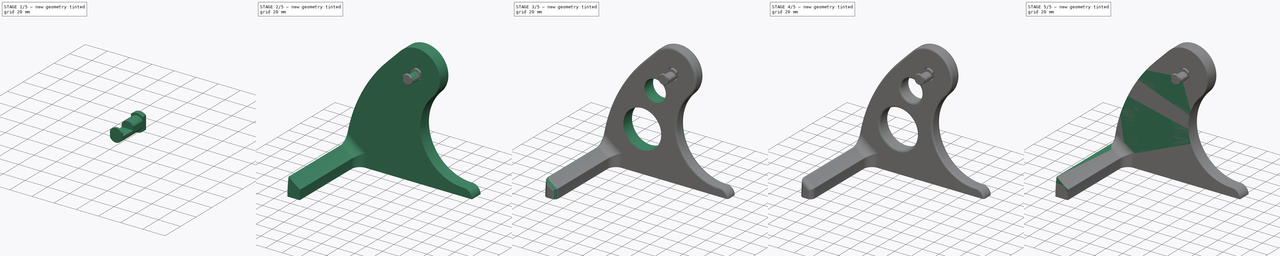
[diagram: build sequence overview — one tinted view per stage of 5, left to right]
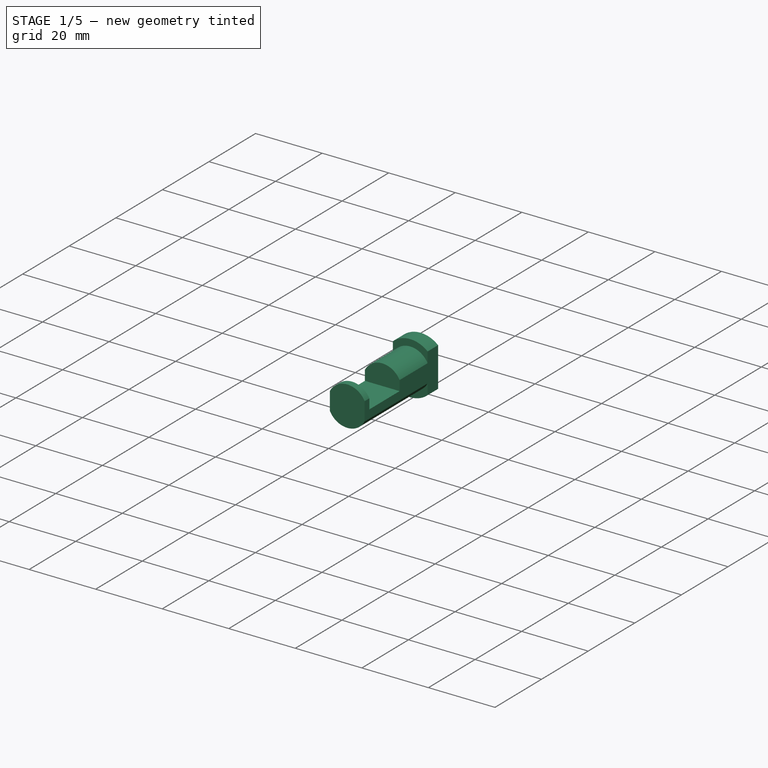
[diagram: stage 1 of 5 — iso view after this stage's code; geometry added in this stage tinted green]
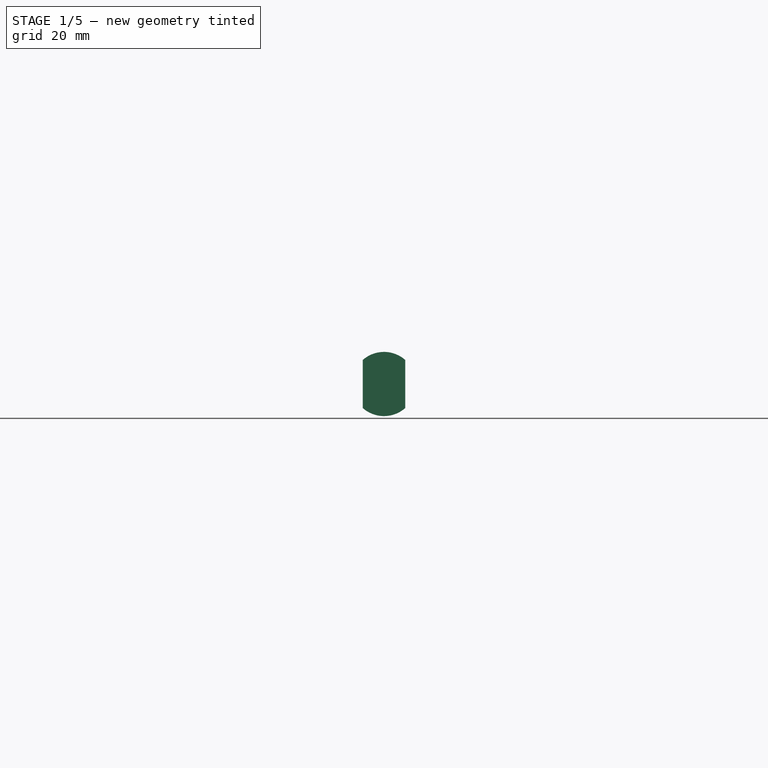
[diagram: stage 1 of 5 — front view after this stage's code; geometry added in this stage tinted green]
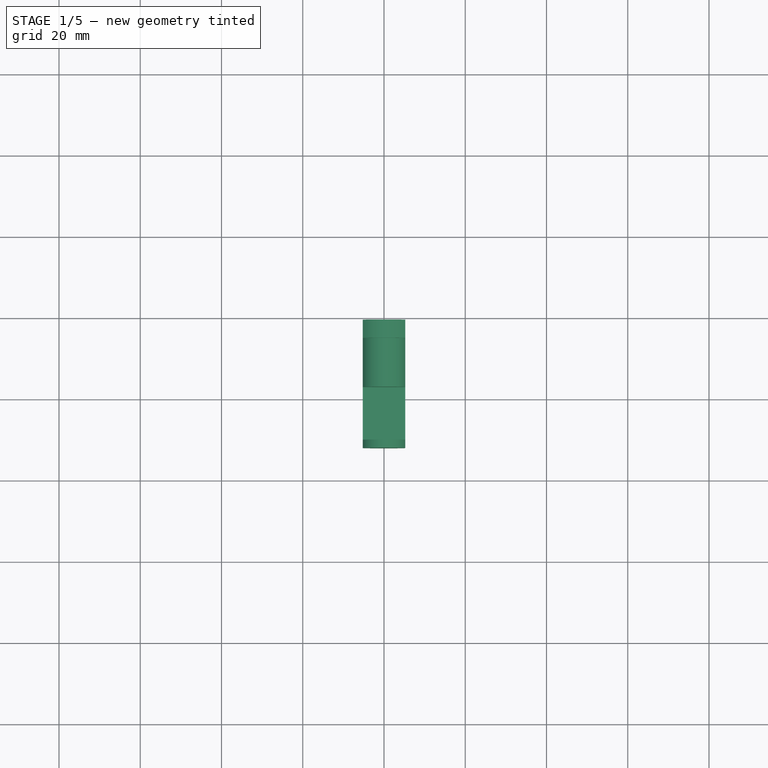
[diagram: stage 1 of 5 — top view after this stage's code; geometry added in this stage tinted green]
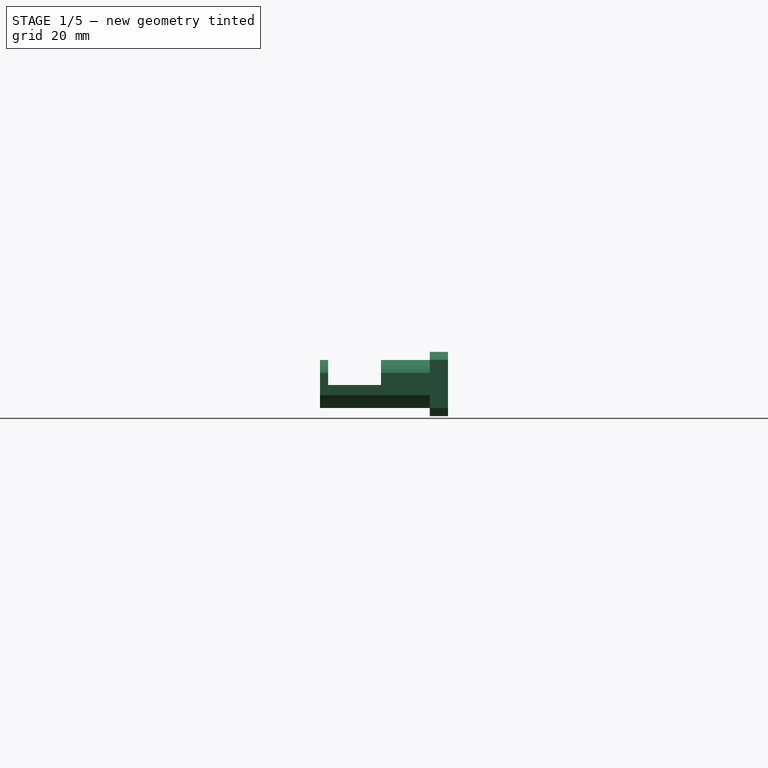
[diagram: stage 1 of 5 — right view after this stage's code; geometry added in this stage tinted green]
FCSTD DOCUMENT  (FreeCAD 0.16R6707 (Git))
Label: spool stand
License: All rights reserved
LicenseURL: http://en.wikipedia.org/wiki/All_rights_reserved
objects: Sketcher::SketchObject×8, PartDesign::Fillet×7, PartDesign::Pad×5, App::DocumentObjectGroup×3, PartDesign::Pocket×3, Part::Feature×1, PartDesign::Chamfer×1
note: 33 computed .brp shape members not serialized (recipe doc carries the construction recipe); baked Part::Feature solids carry a one-line shape summary decoded from their .brp

FEATURE [App::DocumentObjectGroup] Group001  label="stand"
  Group = -> [Group,Pad001001,Fillet,Fillet001,Fillet002,Fillet003,Pocket,Fillet004,Pocket001,Fillet005,Fillet006]
FEATURE [Sketcher::SketchObject] Sketch004
  Placement = pos=(0,-15,0) rot=(1,0,0;1.5708rad)
  sketch-geometry (4):
    g0: ArcOfCircle CenterX=0 CenterY=120 CenterZ=0 NormalX=0 NormalY=0 NormalZ=1 Radius=5.9 StartAngle=3.62647 EndAngle=5.79831
    g1: LineSegment StartX=-5.21991 StartY=122.75 StartZ=0 EndX=-5.21991 EndY=117.25 EndZ=0
    g2: LineSegment StartX=5.21991 StartY=117.25 StartZ=0 EndX=5.21991 EndY=122.75 EndZ=0
    g3: ArcOfCircle CenterX=0 CenterY=120 CenterZ=0 NormalX=0 NormalY=0 NormalZ=1 Radius=5.9 StartAngle=0.484879 EndAngle=2.65671
  constraints (14):
    c: Radius(g0) = 5.9
    c: Vertical(g1)
    c: Vertical(g2)
    c: Equal(g1,g2)
    c: Coincident(g3,g1)
    c: PointOnObject(g0,g1)
    c: Equal(g0,g3)
    c: Coincident(g0,g2)
    c: Coincident(g3,g2)
    c: Coincident(g0,g3)
    c: DistanceY(g2,g2) = 5.5
    c: Coincident(g1,g3)
    c: Coincident(g0,g1)
    c: PointOnObject(g0,g-2)
FEATURE [PartDesign::Pad] Pad001002
  Length = 17
  Length2 = 10
  Placement = pos=(0,-15,0) rot=(1,0,0;1.5708rad)
  Reversed = true
  Sketch = -> Sketch004
  Type = 4
FEATURE [Sketcher::SketchObject] Sketch005
  ExternalGeometry = -> [Pad001002]
  Placement = pos=(0,-5,0) rot=(-1,0,0;1.5708rad)
  Support = -> Pad001002 [Face5]
  sketch-geometry (4):
    g0: ArcOfCircle CenterX=0 CenterY=-120 CenterZ=0 NormalX=0 NormalY=0 NormalZ=1 Radius=7.9 StartAngle=0.848981 EndAngle=2.29261
    g1: ArcOfCircle CenterX=0 CenterY=-120 CenterZ=0 NormalX=0 NormalY=0 NormalZ=1 Radius=7.9 StartAngle=3.99057 EndAngle=5.4342
    g2: LineSegment StartX=5.21991 StartY=-114.07 StartZ=0 EndX=5.21991 EndY=-125.93 EndZ=0
    g3: LineSegment StartX=-5.21991 StartY=-125.93 StartZ=0 EndX=-5.21991 EndY=-114.07 EndZ=0
  constraints (12):
    c: Coincident(g0,g-3)
    c: Radius(g0) = 7.9
    c: Coincident(g1,g0)
    c: Equal(g1,g0)
    c: Coincident(g2,g0)
    c: Coincident(g2,g1)
    c: Vertical(g2)
    c: Coincident(g3,g0)
    c: Vertical(g3)
    c: PointOnObject(g-3,g3)
    c: Coincident(g1,g3)
    c: Equal(g2,g3)
FEATURE [PartDesign::Pad] Pad001003
  Length = 4.5
  Length2 = 100
  Placement = pos=(0,-15,0) rot=(1,0,0;1.5708rad)
  Sketch = -> Sketch005
  Type = 0
FEATURE [Sketcher::SketchObject] Sketch006
  ExternalGeometry = -> [Pad001003]
  Placement = pos=(5.21991,-15,0) rot=(0.707107,0,0.707107;3.14159rad)
  Support = -> Pad001003 [Face3]
  sketch-geometry (4):
    g0: LineSegment StartX=129.75 StartY=15 StartZ=0 EndX=119.75 EndY=15 EndZ=0
    g1: LineSegment StartX=119.75 StartY=15 StartZ=0 EndX=119.75 EndY=2 EndZ=0
    g2: LineSegment StartX=119.75 StartY=2 StartZ=0 EndX=129.75 EndY=2 EndZ=0
    g3: LineSegment StartX=129.75 StartY=2 StartZ=0 EndX=129.75 EndY=15 EndZ=0
  constraints (12):
    c: Coincident(g0,g1)
    c: Coincident(g1,g2)
    c: Coincident(g2,g3)
    c: Coincident(g3,g0)
    c: Horizontal(g0)
    c: Horizontal(g2)
    c: Vertical(g1)
    c: Vertical(g3)
    c: DistanceY(g3,g3) = 13
    c: DistanceX(g0,g0) = 10
    c: DistanceY(g0,g-3) = 2
    c: DistanceX(g0,g-3) = 3
FEATURE [PartDesign::Pocket] Pocket002
  Length = 5
  Placement = pos=(0,-15,0) rot=(1,0,0;1.5708rad)
  Sketch = -> Sketch006
  Type = 1
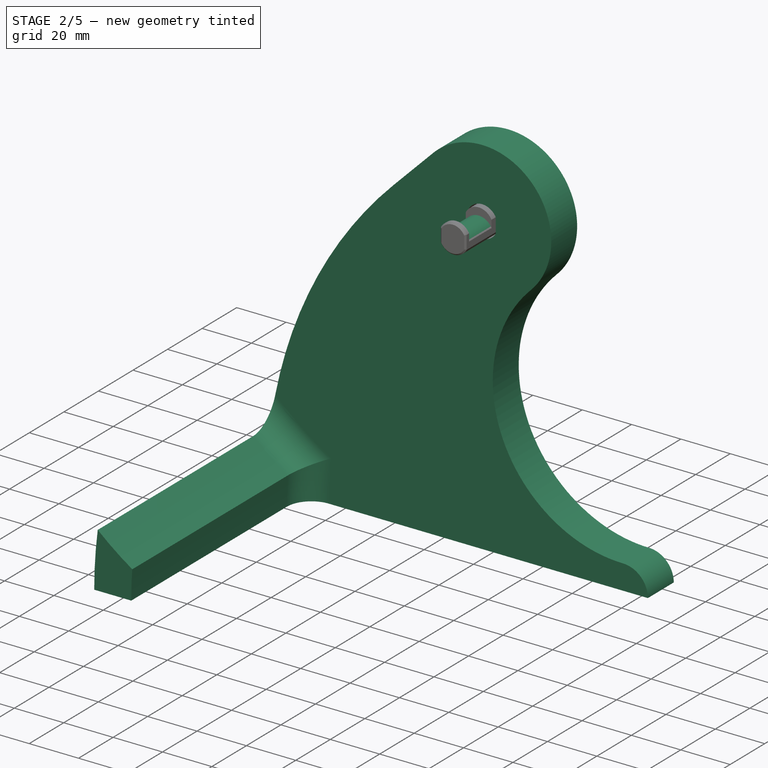
[diagram: stage 2 of 5 — iso view after this stage's code; geometry added in this stage tinted green]
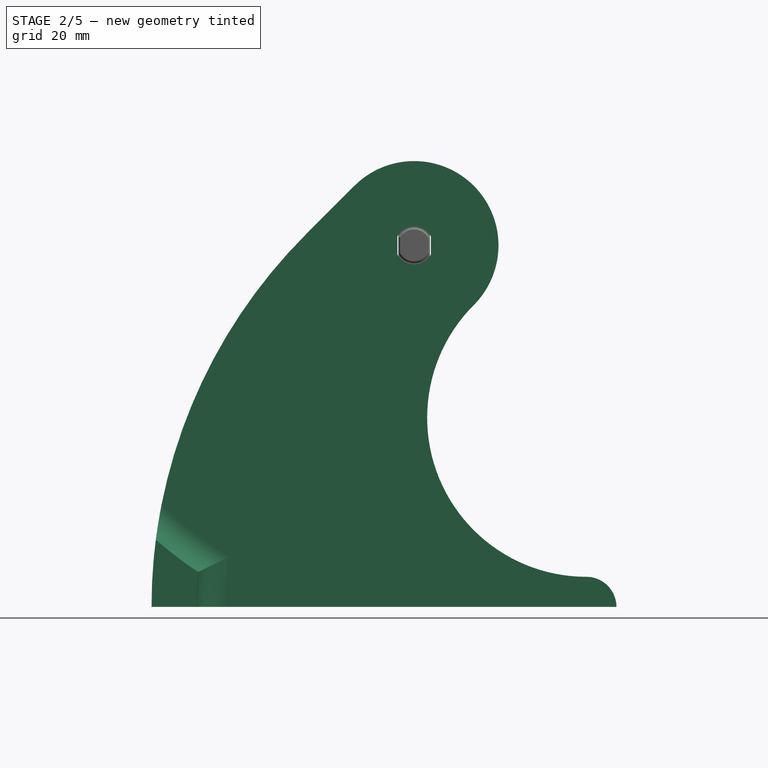
[diagram: stage 2 of 5 — front view after this stage's code; geometry added in this stage tinted green]
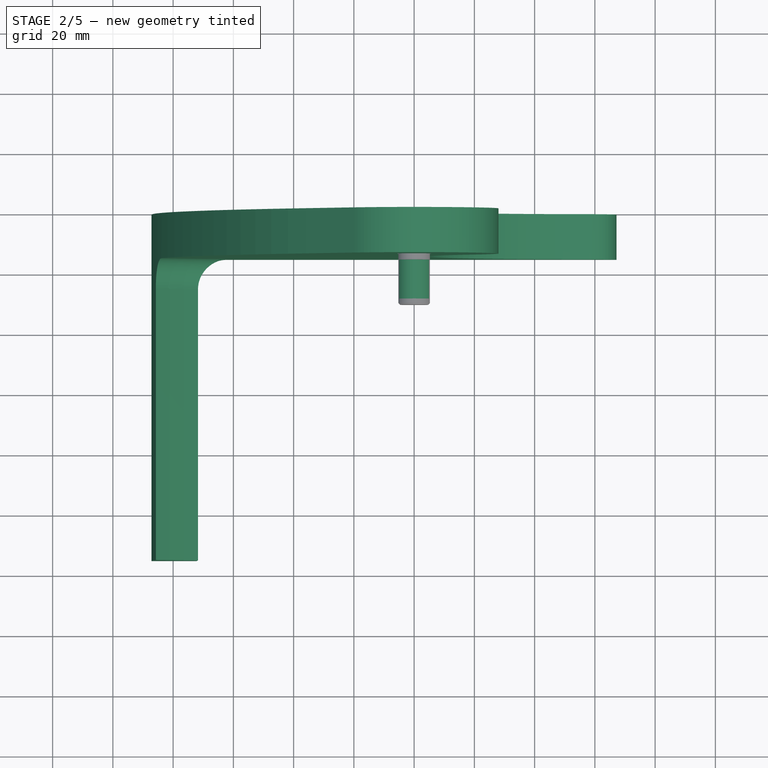
[diagram: stage 2 of 5 — top view after this stage's code; geometry added in this stage tinted green]
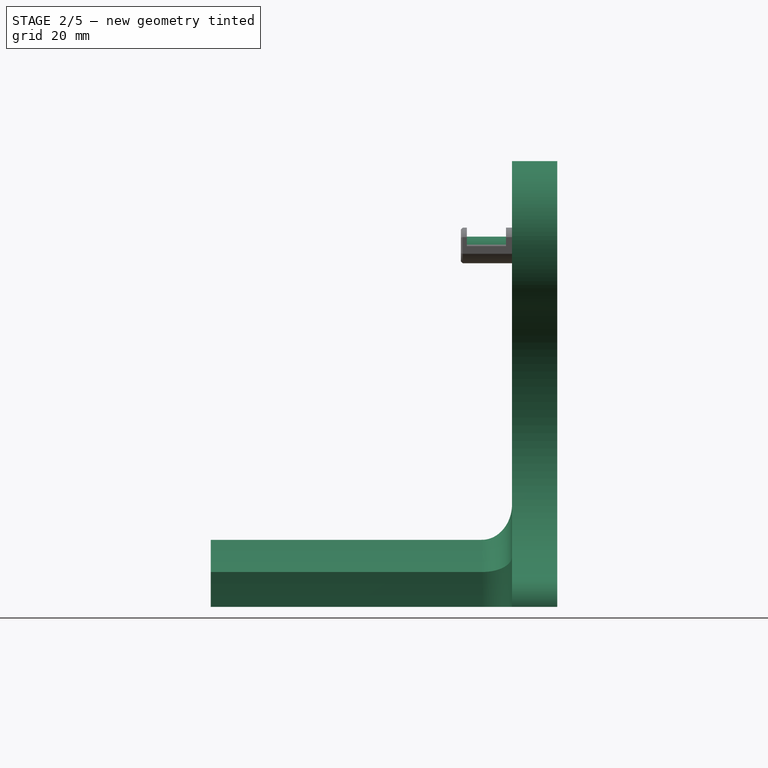
[diagram: stage 2 of 5 — right view after this stage's code; geometry added in this stage tinted green]
FEATURE [App::DocumentObjectGroup] Group  label="src"
  Group = -> [Pad,Pad001]
FEATURE [Part::Feature] Pad001001  label="Pad001"
  shape: bbox 154.3 x 115 x 148 mm, 15 faces (baked)
FEATURE [PartDesign::Fillet] Fillet
  Base = -> Pad001001 [Edge18,Edge19]
  Radius = 10
FEATURE [PartDesign::Chamfer] Chamfer
  Base = -> Pocket002 [Edge1,Edge2,Edge3,Edge4]
  Placement = pos=(0,-15,0) rot=(1,0,0;1.5708rad)
  Size = 0.6
FEATURE [Sketcher::SketchObject] Sketch007
  ExternalGeometry = -> [Chamfer]
  Placement = pos=(0,-17,0) rot=(1,0,0;1.5708rad)
  Support = -> Chamfer [Face14]
  sketch-geometry (2):
    g0: ArcOfCircle CenterX=0 CenterY=117 CenterZ=0 NormalX=0 NormalY=0 NormalZ=1 Radius=5.9 StartAngle=0.484879 EndAngle=2.65671
    g1: LineSegment StartX=-5.21991 StartY=119.75 StartZ=0 EndX=5.21991 EndY=119.75 EndZ=0
  constraints (7):
    c: PointOnObject(g0,g-2)
    c: Equal(g0,g-3)
    c: Coincident(g1,g0)
    c: Coincident(g0,g1)
    c: Coincident(g0,g-4)
    c: Horizontal(g1)
    c: Coincident(g0,g-5)
FEATURE [PartDesign::Pad] Pad001004
  Length = 10
  Length2 = 100
  Placement = pos=(0,-15,0) rot=(1,0,0;1.5708rad)
  Sketch = -> Sketch007
  Type = 3
  UpToFace = -> Chamfer [Face13]
FEATURE [App::DocumentObjectGroup] Group002  label="rod"
  Group = -> [Pad001002,Pad001003,Pocket002,Chamfer,Pad001004]
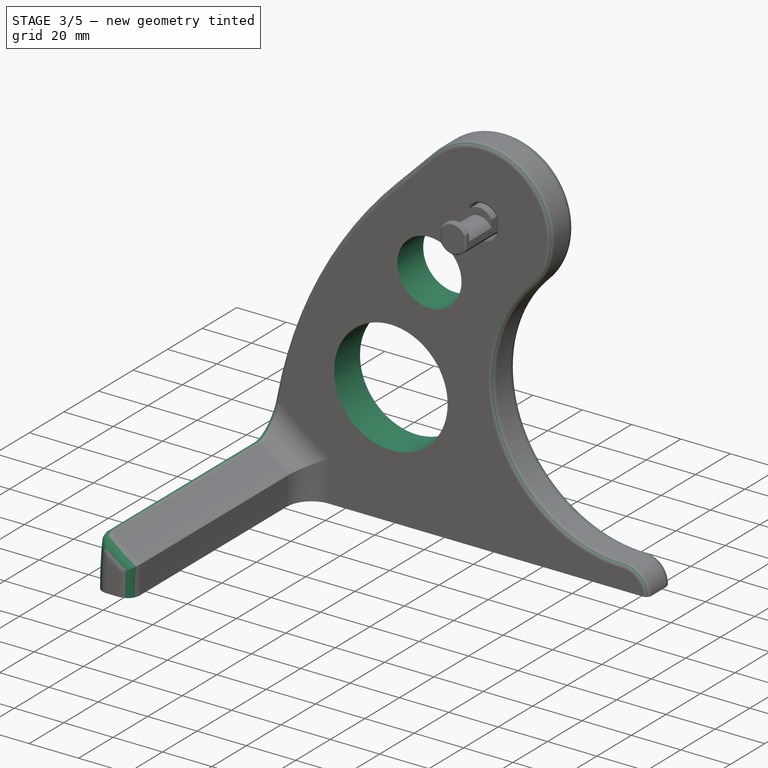
[diagram: stage 3 of 5 — iso view after this stage's code; geometry added in this stage tinted green]
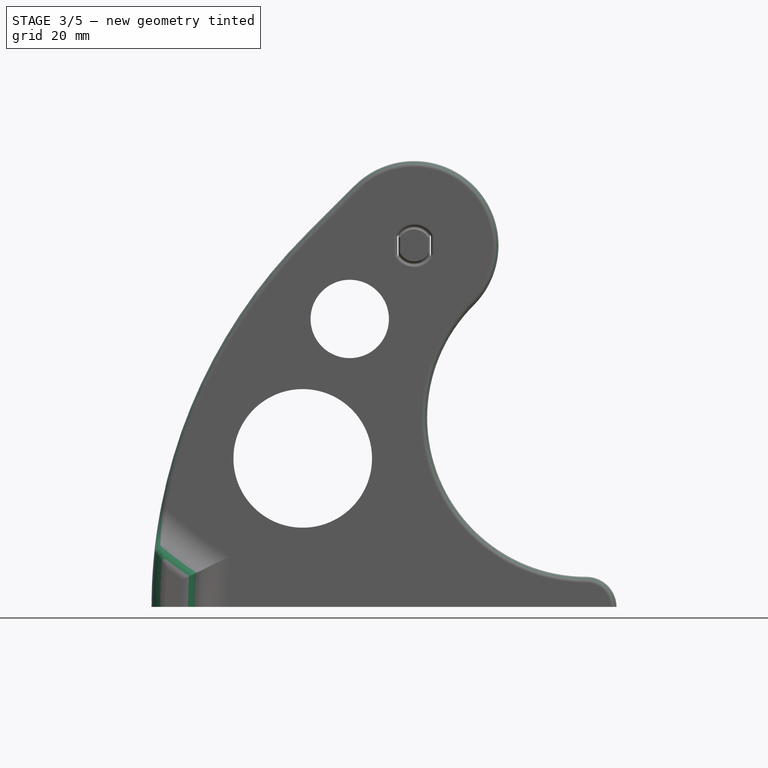
[diagram: stage 3 of 5 — front view after this stage's code; geometry added in this stage tinted green]
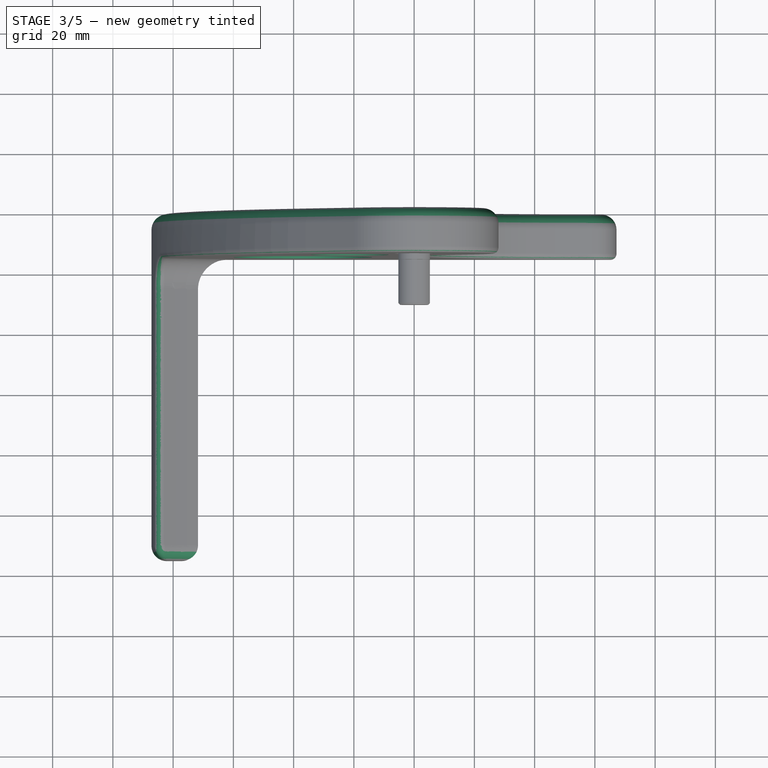
[diagram: stage 3 of 5 — top view after this stage's code; geometry added in this stage tinted green]
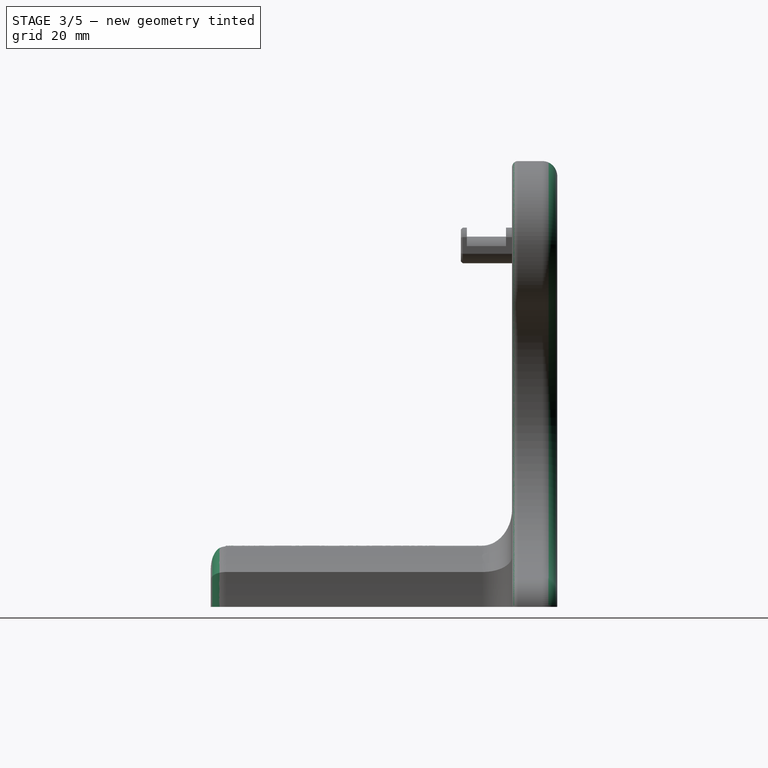
[diagram: stage 3 of 5 — right view after this stage's code; geometry added in this stage tinted green]
FEATURE [PartDesign::Fillet] Fillet001
  Base = -> Fillet [Edge17,Edge42,Edge44,Edge32,Edge33,Edge26,Edge22,Edge16]
  Radius = 5
FEATURE [PartDesign::Fillet] Fillet002
  Base = -> Fillet001 [Edge7]
  Radius = 2
FEATURE [PartDesign::Fillet] Fillet003
  Base = -> Fillet002 [Edge48,Edge49,Edge51,Edge50,Edge56,Edge57,Edge58,Edge55]
  Radius = 1
FEATURE [Sketcher::SketchObject] Sketch002
  ExternalGeometry = -> [Fillet003]
  Placement = pos=(0,-15,0) rot=(1,0,0;1.5708rad)
  Support = -> Fillet003 [Face1]
  sketch-geometry (8):
    g0: Circle CenterX=-21.3704 CenterY=95.5896 CenterZ=0 NormalX=0 NormalY=0 NormalZ=1 Radius=13
    g1: Circle CenterX=-36.9811 CenterY=49.306 CenterZ=0 NormalX=0 NormalY=0 NormalZ=1 Radius=23
    g2: LineSegment [constr] StartX=-51.6315 StartY=102.318 StartZ=0 EndX=-21.3704 EndY=95.5896 EndZ=0
    g3: LineSegment [constr] StartX=-21.3704 StartY=95.5896 StartZ=0 EndX=8.89074 EndY=88.8616 EndZ=0
    g4: LineSegment [constr] StartX=-77.9811 StartY=49.306 StartZ=0 EndX=-36.9811 EndY=49.306 EndZ=0
    g5: LineSegment [constr] StartX=-36.9811 StartY=49.306 StartZ=0 EndX=4.01888 EndY=49.306 EndZ=0
    g6: LineSegment [constr] StartX=-6.53986 StartY=116.757 StartZ=0 EndX=-13.9107 EndY=106.236 EndZ=0
    g7: LineSegment [constr] StartX=-29.6304 StartY=71.0997 StartZ=0 EndX=-25.5251 EndY=83.2714 EndZ=0
  constraints (25):
    c: PointOnObject(g2,g-3)
    c: Coincident(g2,g0)
    c: Coincident(g2,g3)
    c: PointOnObject(g3,g-4)
    c: PointOnObject(g4,g-3)
    c: Coincident(g4,g1)
    c: Coincident(g4,g5)
    c: PointOnObject(g5,g-4)
    c: Parallel(g2,g3)
    c: Parallel(g4,g5)
    c: Equal(g4,g5)
    c: Equal(g2,g3)
    c: Radius(g1) = 23
    c: Radius(g0) = 13
    c: Horizontal(g5)
    c: Distance(g2) = 31
    c: DistanceX(g4,g4) = 41
    c: Coincident(g-5,g6)
    c: PointOnObject(g7,g1)
    c: PointOnObject(g7,g0)
    c: Perpendicular(g0,g6)
    c: Perpendicular(g0,g7)
    c: Perpendicular(g1,g7)
    c: Equal(g7,g6)
    c: PointOnObject(g6,g0)
FEATURE [PartDesign::Pocket] Pocket
  Length = 5
  Sketch = -> Sketch002
  Type = 1
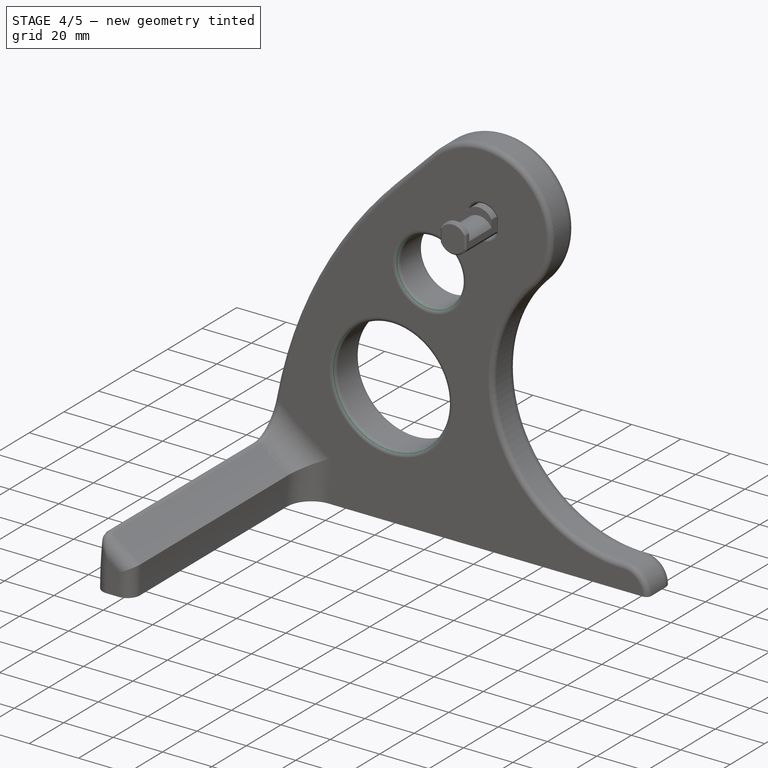
[diagram: stage 4 of 5 — iso view after this stage's code; geometry added in this stage tinted green]
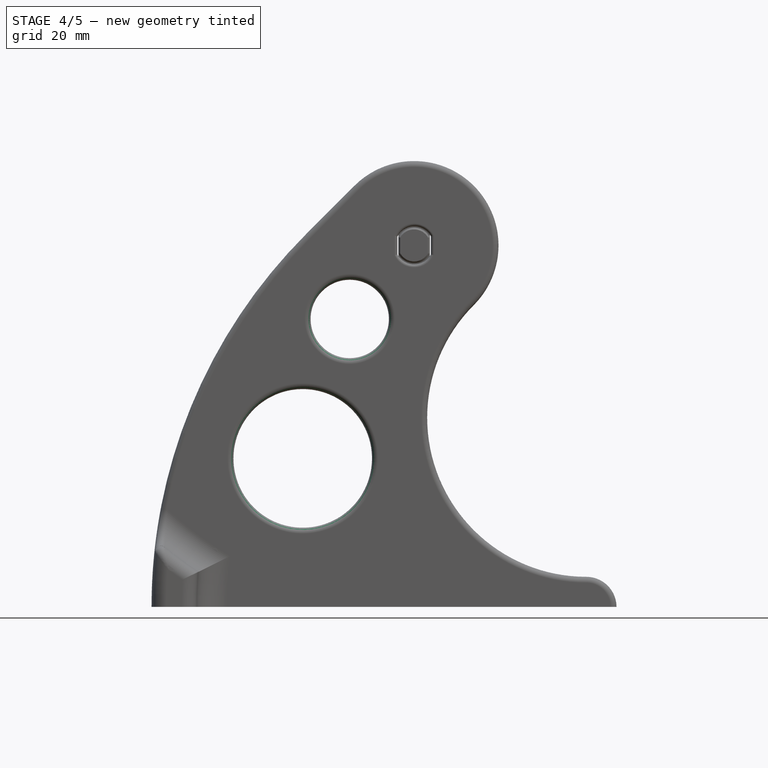
[diagram: stage 4 of 5 — front view after this stage's code; geometry added in this stage tinted green]
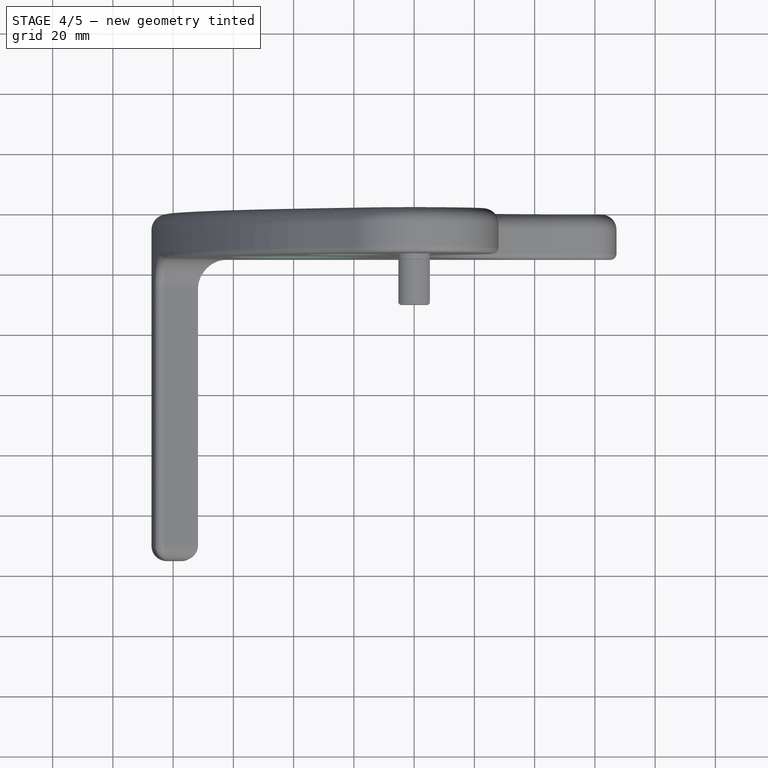
[diagram: stage 4 of 5 — top view after this stage's code; geometry added in this stage tinted green]
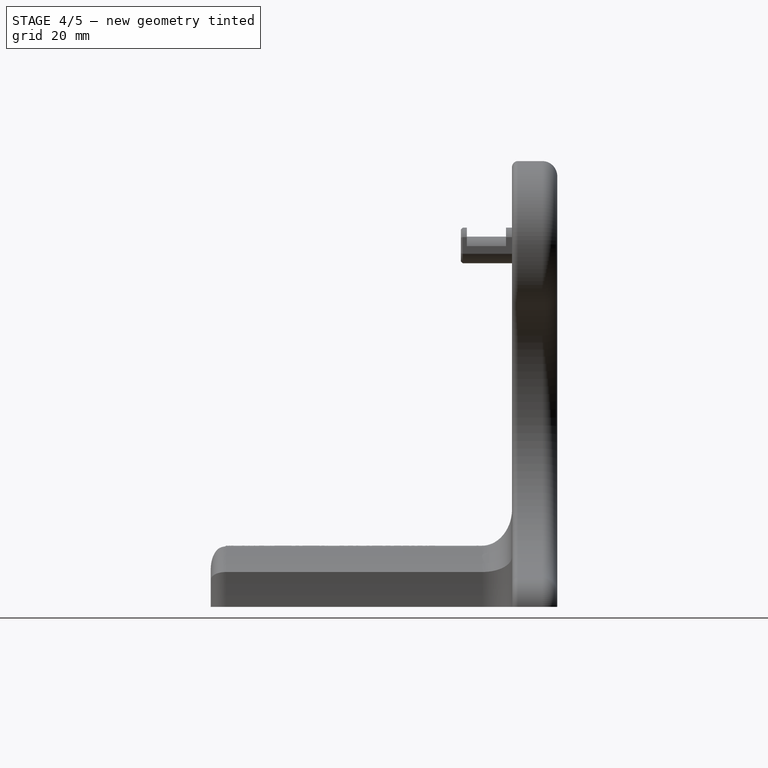
[diagram: stage 4 of 5 — right view after this stage's code; geometry added in this stage tinted green]
FEATURE [PartDesign::Fillet] Fillet004
  Base = -> Pocket [Edge14,Edge51,Edge9,Edge41]
  Radius = 2
FEATURE [Sketcher::SketchObject] Sketch003
  ExternalGeometry = -> [Fillet004]
  Placement = pos=(0,0,0) rot=(0,0.707107,0.707107;3.14159rad)
  Support = -> Fillet004 [Face24]
  sketch-geometry (1):
    g0: Circle CenterX=0 CenterY=120 CenterZ=0 NormalX=0 NormalY=0 NormalZ=1 Radius=8.2
  constraints (2):
    c: Coincident(g0,g-4)
    c: Radius(g0) = 8.2
FEATURE [PartDesign::Pocket] Pocket001
  Length = 5
  Sketch = -> Sketch003
  Type = 0
FEATURE [PartDesign::Fillet] Fillet005
  Base = -> Pocket001 [Edge87,Edge90,Edge94,Edge92]
  Radius = 1
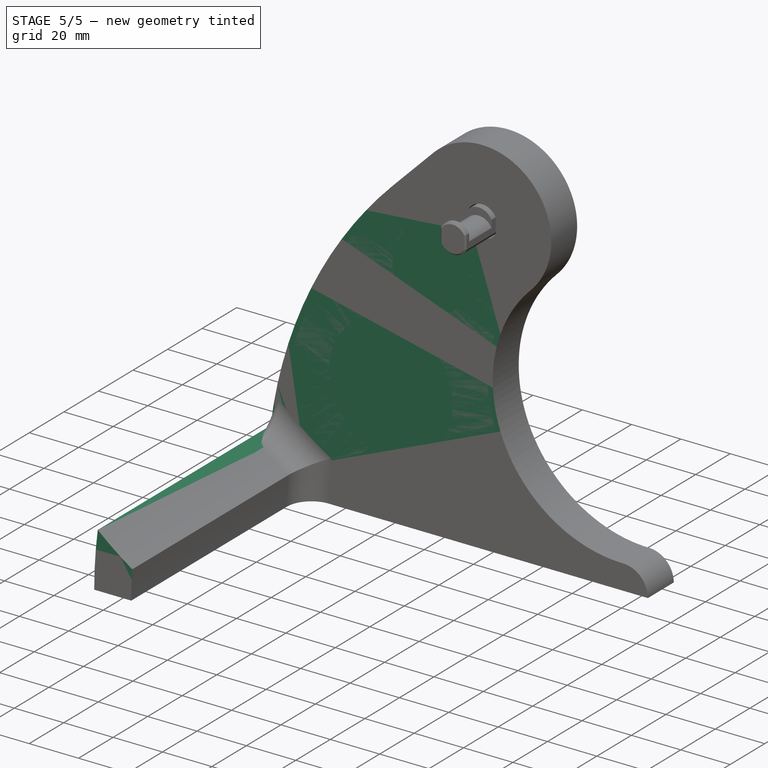
[diagram: stage 5 of 5 — iso view after this stage's code; geometry added in this stage tinted green]
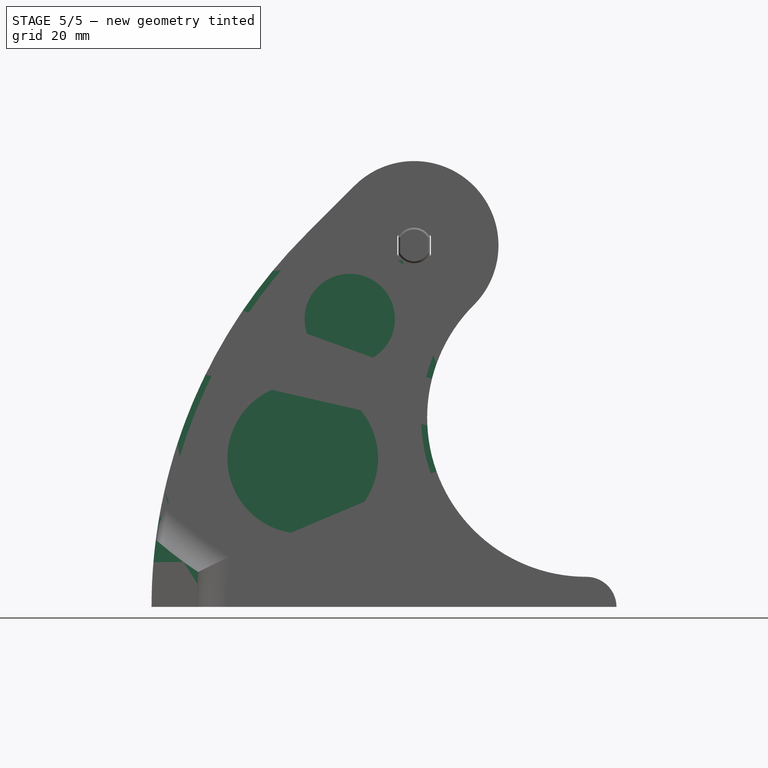
[diagram: stage 5 of 5 — front view after this stage's code; geometry added in this stage tinted green]
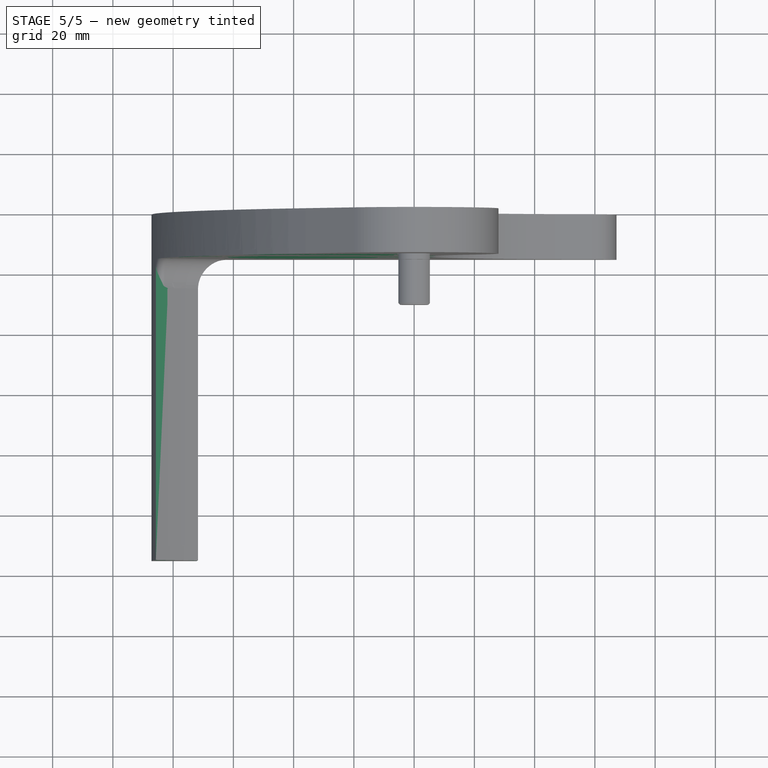
[diagram: stage 5 of 5 — top view after this stage's code; geometry added in this stage tinted green]
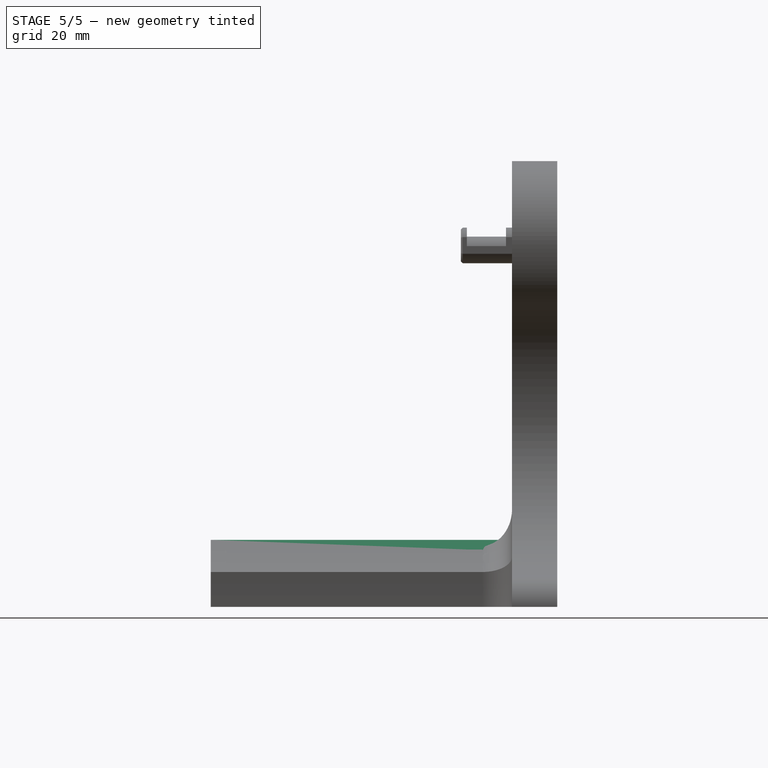
[diagram: stage 5 of 5 — right view after this stage's code; geometry added in this stage tinted green]
FEATURE [Sketcher::SketchObject] Sketch
  Placement = pos=(0,0,0) rot=(1,0,0;1.5708rad)
  sketch-geometry (16):
    g0: ArcOfCircle CenterX=0 CenterY=120 CenterZ=0 NormalX=0 NormalY=0 NormalZ=1 Radius=6.3 StartAngle=3.63791 EndAngle=5.78687
    g1: ArcOfCircle CenterX=0 CenterY=120 CenterZ=0 NormalX=0 NormalY=0 NormalZ=1 Radius=28 StartAngle=5.49779 EndAngle=8.63938
    g2: LineSegment StartX=-67.1615 StartY=0 StartZ=0 EndX=57.1615 EndY=0 EndZ=0
    g3: Circle [constr] CenterX=0 CenterY=120 CenterZ=0 NormalX=0 NormalY=0 NormalZ=1 Radius=110
    g4: LineSegment [constr] StartX=57.1615 StartY=0 StartZ=0 EndX=57.1615 EndY=10 EndZ=0
    g5: ArcOfCircle CenterX=57.1615 CenterY=62.8385 CenterZ=0 NormalX=0 NormalY=0 NormalZ=1 Radius=52.8385 StartAngle=2.35619 EndAngle=4.71239
    g6: ArcOfCircle CenterX=57.1615 CenterY=0 CenterZ=0 NormalX=0 NormalY=0 NormalZ=1 Radius=10 StartAngle=0 EndAngle=1.5708
    g7: LineSegment StartX=57.1615 StartY=0 StartZ=0 EndX=67.1615 EndY=0 EndZ=0
    g8: LineSegment [constr] StartX=0 StartY=120 StartZ=0 EndX=19.799 EndY=100.201 EndZ=0
    g9: LineSegment StartX=-67.1615 StartY=0 StartZ=0 EndX=-87.1615 EndY=0 EndZ=0
    g10: LineSegment StartX=-19.799 StartY=139.799 StartZ=0 EndX=-35.9411 EndY=123.657 EndZ=0
    g11: ArcOfCircle CenterX=87.7158 CenterY=0 CenterZ=0 NormalX=0 NormalY=0 NormalZ=1 Radius=174.877 StartAngle=2.35619 EndAngle=3.14159
    g12: LineSegment [constr] StartX=-19.799 StartY=139.799 StartZ=0 EndX=0 EndY=120 EndZ=0
    g13: LineSegment StartX=-5.53986 StartY=117 StartZ=0 EndX=-5.53986 EndY=123 EndZ=0
    g14: LineSegment StartX=5.53986 StartY=117 StartZ=0 EndX=5.53986 EndY=123 EndZ=0
    g15: ArcOfCircle CenterX=0 CenterY=120 CenterZ=0 NormalX=0 NormalY=0 NormalZ=1 Radius=6.3 StartAngle=0.496317 EndAngle=2.64528
  constraints (47):
    c: PointOnObject(g0,g-2)
    c: Radius(g0) = 6.3
    c: PointOnObject(g2,g-1)
    c: Coincident(g1,g0)
    c: Radius(g1) = 28
    c: Coincident(g3,g0)
    c: Radius(g3) = 110
    c: Coincident(g4,g2)
    c: Vertical(g4)
    c: DistanceY(g4,g4) = 10
    c: Coincident(g5,g1)
    c: Coincident(g4,g5)
    c: Tangent(g5,g1)
    c: Perpendicular(g5,g4)
    c: DistanceY(g-1,g0) = 120
    c: Coincident(g6,g4)
    c: Tangent(g6,g5)
    c: Coincident(g7,g2)
    c: Coincident(g7,g6)
    c: Horizontal(g7)
    c: Perpendicular(g6,g7)
    c: Symmetric(g2,g6,g-2)
    c: Coincident(g8,g0)
    c: Coincident(g8,g1)
    c: Angle(g8) = -0.785398
    c: Coincident(g9,g2)
    c: Horizontal(g9)
    c: DistanceX(g9,g2) = 20
    c: Coincident(g10,g1)
    c: Coincident(g11,g9)
    c: Coincident(g11,g10)
    c: Tangent(g11,g10)
    c: Perpendicular(g11,g9)
    c: Coincident(g12,g1)
    c: Coincident(g12,g0)
    c: Angle(g12) = -0.785398
    c: Perpendicular(g12,g10)
    c: Vertical(g13)
    c: Vertical(g14)
    c: Coincident(g0,g13)
    c: Coincident(g15,g13)
    c: Equal(g0,g15)
    c: Coincident(g0,g14)
    c: Coincident(g15,g14)
    c: Coincident(g0,g15)
    c: Equal(g13,g14)
    c: DistanceY(g14,g14) = 6
FEATURE [PartDesign::Pad] Pad
  Length = 15
  Length2 = 100
  Placement = pos=(0,0,0) rot=(1,0,0;1.5708rad)
  Sketch = -> Sketch
  Type = 0
FEATURE [Sketcher::SketchObject] Sketch001
  ExternalGeometry = -> [Pad]
  Placement = pos=(0,-15,0) rot=(1,0,0;1.5708rad)
  Support = -> Pad [Face14]
  sketch-geometry (5):
    g0: Circle [constr] CenterX=0 CenterY=120 CenterZ=0 NormalX=0 NormalY=0 NormalZ=1 Radius=110
    g1: LineSegment StartX=-87.1615 StartY=0 StartZ=0 EndX=-72.1615 EndY=0 EndZ=0
    g2: ArcOfCircle CenterX=87.7158 CenterY=0 CenterZ=0 NormalX=0 NormalY=0 NormalZ=1 Radius=174.877 StartAngle=3.01384 EndAngle=3.14159
    g3: ArcOfCircle CenterX=87.7158 CenterY=0 CenterZ=0 NormalX=0 NormalY=0 NormalZ=1 Radius=159.877 StartAngle=3.06905 EndAngle=3.14159
    g4: ArcOfCircle CenterX=0 CenterY=120 CenterZ=0 NormalX=0 NormalY=0 NormalZ=1 Radius=130 StartAngle=3.99222 EndAngle=4.1278
  constraints (13):
    c: Coincident(g0,g-4)
    c: Radius(g0) = 110
    c: Coincident(g1,g-3)
    c: Horizontal(g1)
    c: DistanceX(g1,g1) = 15
    c: Coincident(g2,g-3)
    c: Coincident(g2,g1)
    c: Coincident(g3,g2)
    c: Coincident(g3,g1)
    c: Coincident(g4,g0)
    c: Coincident(g4,g2)
    c: Coincident(g4,g3)
    c: Radius(g4) = 130
FEATURE [PartDesign::Pad] Pad001
  Length = 100
  Length2 = 100
  Placement = pos=(0,0,0) rot=(1,0,0;1.5708rad)
  Sketch = -> Sketch001
  Type = 0
FEATURE [PartDesign::Fillet] Fillet006
  Base = -> Fillet005 [Edge40]
  Radius = 1
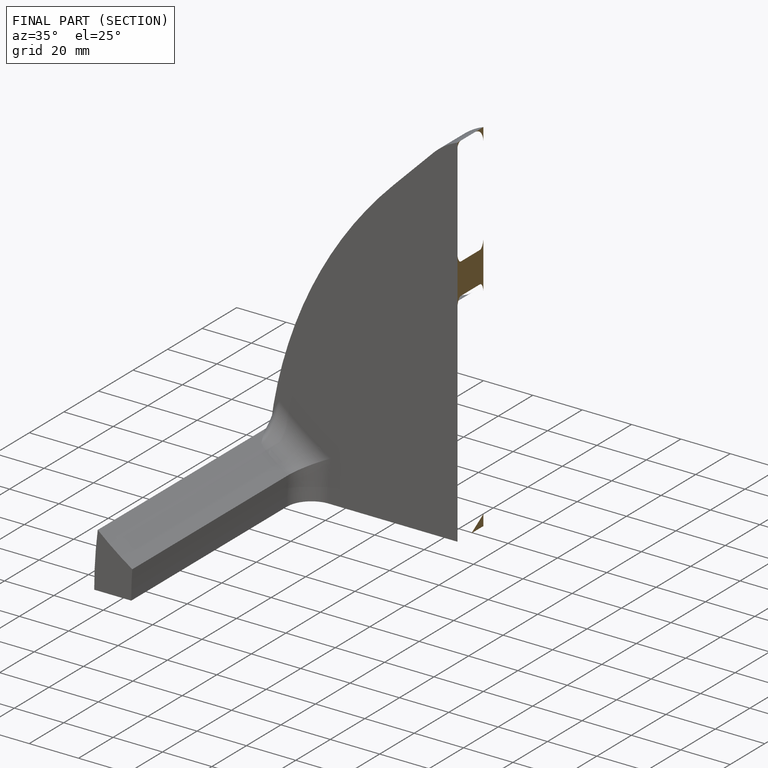
[diagram: finished part — half-section view (interior)]
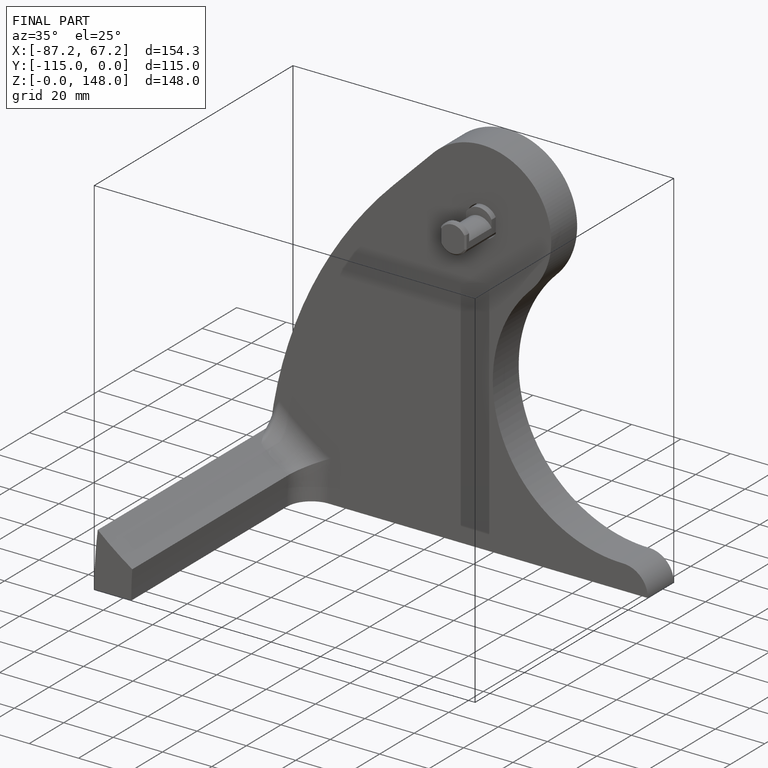
[diagram: finished part — iso view with bounding-box wireframe]
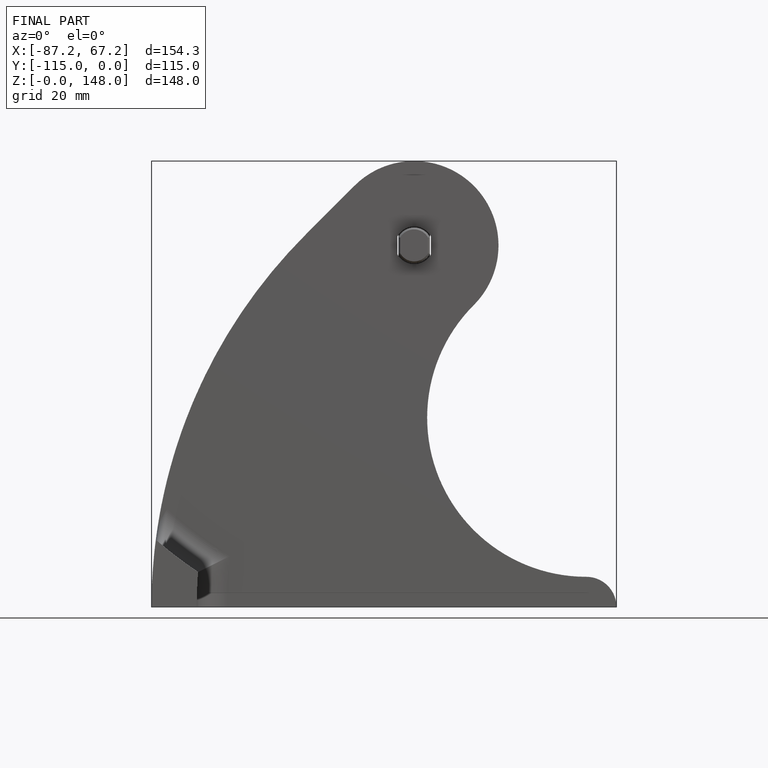
[diagram: finished part — front view with bounding-box wireframe]
